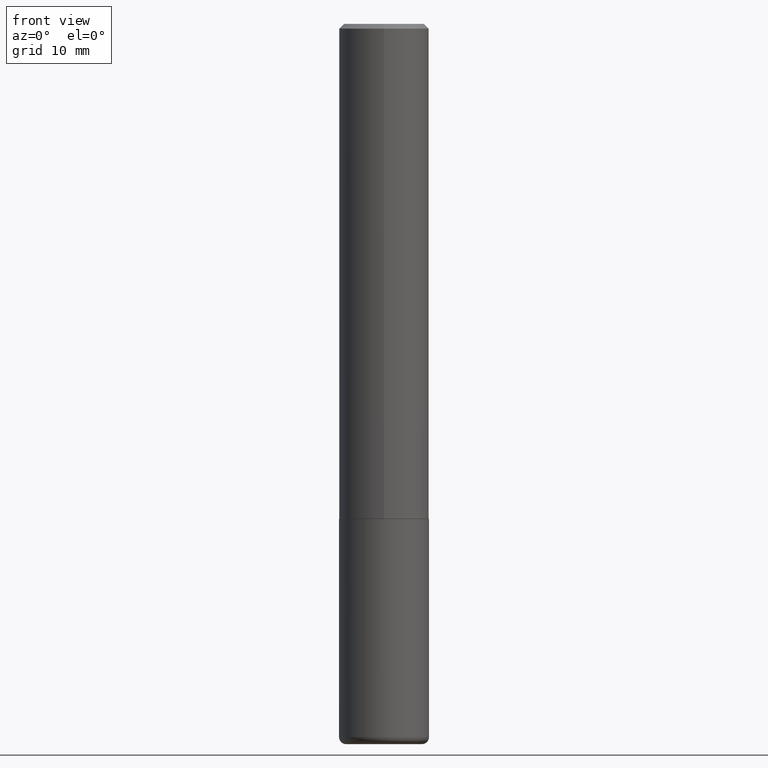
[diagram: clean part render]
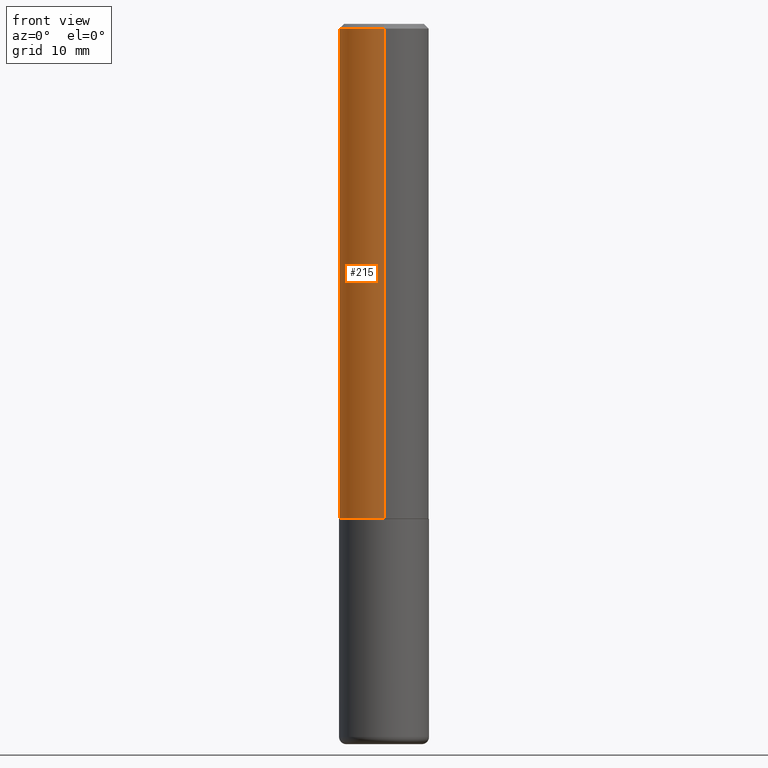
[diagram: same view with one face highlighted and labeled with its STEP entity id]
A machine part, front view. The second image highlights one B-rep face of the part: STEP entity #215.
In plain terms, the highlighted cylindrical surface (partial cylindrical patch) has radius 4.7625 mm, axis along (-0, 0, 1).
Its self-contained STEP definition (entity closure, byte-faithful):
#1 = CARTESIAN_POINT ( 'NONE',  ( 0.000000000000000000, 0.000000000000000000, 0.000000000000000000 ) ) ;
#2 = AXIS2_PLACEMENT_3D ( 'NONE', #256, #218, #103 ) ;
#3 = FACE_OUTER_BOUND ( 'NONE', #185, .T. ) ;
#23 = ORIENTED_EDGE ( 'NONE', *, *, #180, .F. ) ;
#26 = VERTEX_POINT ( 'NONE', #370 ) ;
#65 = AXIS2_PLACEMENT_3D ( 'NONE', #349, #351, #353 ) ;
#74 = LINE ( 'NONE', #397, #207 ) ;
#98 = CARTESIAN_POINT ( 'NONE',  ( -1.309305502066126296E-15, -0.1875000000000074662, -2.061499999999999666 ) ) ;
#103 = DIRECTION ( 'NONE',  ( -6.982962677686265922E-15, -1.000000000000000000, 3.483106191921934371E-15 ) ) ;
#106 = CARTESIAN_POINT ( 'NONE',  ( -1.286343374582161774E-15, -0.1875000000000001110, -0.01999999999999938632 ) ) ;
#108 = EDGE_CURVE ( 'NONE', #26, #237, #306, .T. ) ;
#127 = LINE ( 'NONE', #283, #202 ) ;
#135 = DIRECTION ( 'NONE',  ( -2.444573509250226187E-29, 3.492763455011074571E-15, 1.000000000000000000 ) ) ;
#142 = EDGE_CURVE ( 'NONE', #26, #230, #127, .T. ) ;
#160 = CYLINDRICAL_SURFACE ( 'NONE', #231, 0.1875000000000001388 ) ;
#180 = EDGE_CURVE ( 'NONE', #230, #233, #401, .T. ) ;
#185 = EDGE_LOOP ( 'NONE', ( #400, #300, #302, #23 ) ) ;
#201 = DIRECTION ( 'NONE',  ( -2.444573509250225907E-29, 3.492763455011074571E-15, 1.000000000000000000 ) ) ;
#202 = VECTOR ( 'NONE', #246, 39.37007874015748143 ) ;
#207 = VECTOR ( 'NONE', #201, 39.37007874015748143 ) ;
#215 = ADVANCED_FACE ( 'NONE', ( #3 ), #160, .T. ) ;
#218 = DIRECTION ( 'NONE',  ( -2.444573509250226187E-29, 3.492763455011074571E-15, 1.000000000000000000 ) ) ;
#223 = DIRECTION ( 'NONE',  ( -6.982962677686266711E-15, -1.000000000000000000, 3.492763455011074966E-15 ) ) ;
#230 = VERTEX_POINT ( 'NONE', #232 ) ;
#231 = AXIS2_PLACEMENT_3D ( 'NONE', #1, #135, #223 ) ;
#232 = CARTESIAN_POINT ( 'NONE',  ( 1.309305502066175797E-15, 0.1874999999999999722, -0.02000000000000069084 ) ) ;
#233 = VERTEX_POINT ( 'NONE', #106 ) ;
#237 = VERTEX_POINT ( 'NONE', #98 ) ;
#246 = DIRECTION ( 'NONE',  ( -2.444573509250225907E-29, 3.492763455011074571E-15, 1.000000000000000000 ) ) ;
#256 = CARTESIAN_POINT ( 'NONE',  ( 4.889147018500461238E-31, -6.985526910022160680E-17, -0.02000000000000003858 ) ) ;
#283 = CARTESIAN_POINT ( 'NONE',  ( 1.332267629550188637E-15, 0.1875000000000001388, -6.548931478145770245E-16 ) ) ;
#300 = ORIENTED_EDGE ( 'NONE', *, *, #108, .T. ) ;
#302 = ORIENTED_EDGE ( 'NONE', *, *, #347, .T. ) ;
#306 = CIRCLE ( 'NONE', #65, 0.1875000000000002498 ) ;
#347 = EDGE_CURVE ( 'NONE', #237, #233, #74, .T. ) ;
#349 = CARTESIAN_POINT ( 'NONE',  ( 5.039488289319341668E-29, -7.200331862505331176E-15, -2.061500000000000554 ) ) ;
#351 = DIRECTION ( 'NONE',  ( -2.444573509250226187E-29, 3.492763455011074571E-15, 1.000000000000000000 ) ) ;
#353 = DIRECTION ( 'NONE',  ( -6.982962677686266711E-15, -1.000000000000000000, 2.913971193241876822E-15 ) ) ;
#370 = CARTESIAN_POINT ( 'NONE',  ( 1.332267629550214473E-15, 0.1874999999999930611, -2.061500000000000998 ) ) ;
#397 = CARTESIAN_POINT ( 'NONE',  ( -1.309305502066175994E-15, -0.1875000000000001388, 6.548931478145770245E-16 ) ) ;
#400 = ORIENTED_EDGE ( 'NONE', *, *, #142, .F. ) ;
#401 = CIRCLE ( 'NONE', #2, 0.1875000000000000555 ) ;